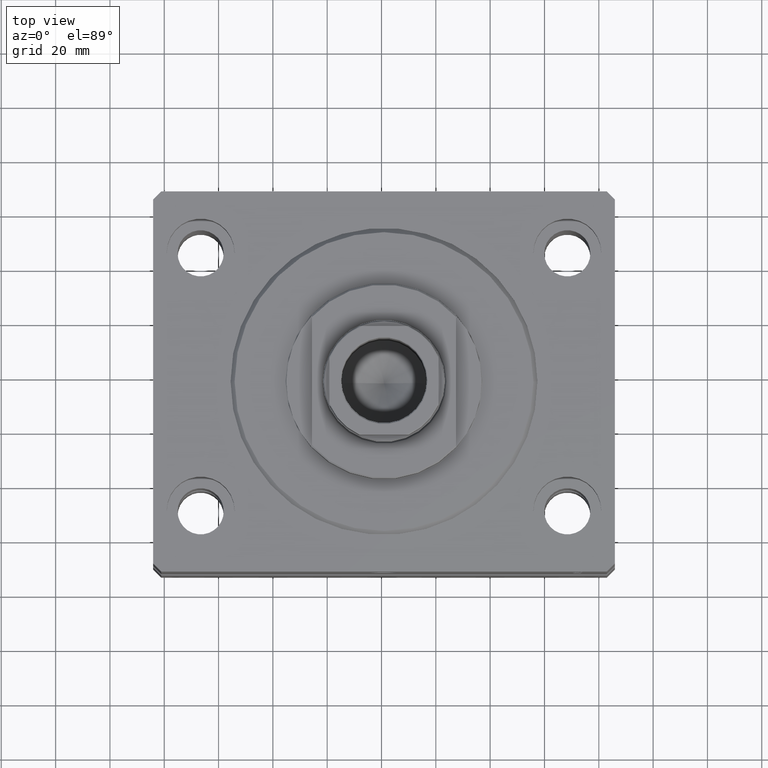
[diagram: clean part render]
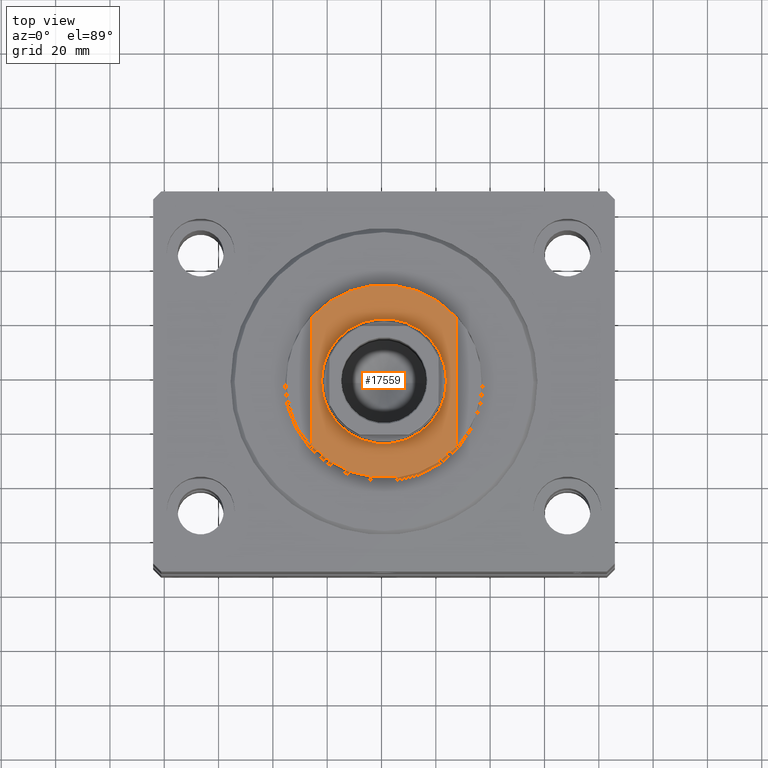
[diagram: same view with one face highlighted and labeled with its STEP entity id]
A machine part, top view. The second image highlights one B-rep face of the part: STEP entity #17559.
In plain terms, the highlighted planar face has unit normal (0, 0, 1).
Its self-contained STEP definition (entity closure, byte-faithful):
#2094 = ORIENTED_EDGE ( 'NONE', *, *, #7196, .T. ) ;
#2496 = AXIS2_PLACEMENT_3D ( 'NONE', #7784, #32256, #35726 ) ;
#2936 = CARTESIAN_POINT ( 'NONE',  ( 0.000000000000000000, 0.000000000000000000, -8.000000000000000000 ) ) ;
#4871 = CARTESIAN_POINT ( 'NONE',  ( 26.50000000000000000, 23.62202362203536765, -8.000000000000000000 ) ) ;
#5412 = DIRECTION ( 'NONE',  ( -1.000000000000000000, 0.000000000000000000, 0.000000000000000000 ) ) ;
#7196 = EDGE_CURVE ( 'NONE', #22814, #39453, #31225, .T. ) ;
#7396 = DIRECTION ( 'NONE',  ( -0.000000000000000000, -0.000000000000000000, 1.000000000000000000 ) ) ;
#7468 = CARTESIAN_POINT ( 'NONE',  ( -26.50000000000000711, -23.62202362203537476, -8.000000000000000000 ) ) ;
#7784 = CARTESIAN_POINT ( 'NONE',  ( 0.000000000000000000, 0.000000000000000000, -8.000000000000000000 ) ) ;
#8877 = CARTESIAN_POINT ( 'NONE',  ( 0.000000000000000000, 0.000000000000000000, -8.000000000000000000 ) ) ;
#9298 = CARTESIAN_POINT ( 'NONE',  ( 26.50000000000000000, -36.36963018783666257, -8.000000000000000000 ) ) ;
#10701 = AXIS2_PLACEMENT_3D ( 'NONE', #25074, #25309, #10776 ) ;
#10703 = DIRECTION ( 'NONE',  ( -0.000000000000000000, -1.000000000000000000, -0.000000000000000000 ) ) ;
#10770 = EDGE_CURVE ( 'NONE', #20800, #39605, #12686, .T. ) ;
#10776 = DIRECTION ( 'NONE',  ( -1.000000000000000000, 0.000000000000000000, -0.000000000000000000 ) ) ;
#12686 = CIRCLE ( 'NONE', #27422, 23.00000000000001776 ) ;
#13542 = DIRECTION ( 'NONE',  ( -0.000000000000000000, -0.000000000000000000, 1.000000000000000000 ) ) ;
#13780 = DIRECTION ( 'NONE',  ( -1.000000000000000000, 0.000000000000000000, 0.000000000000000000 ) ) ;
#14229 = FACE_OUTER_BOUND ( 'NONE', #22247, .T. ) ;
#14972 = CARTESIAN_POINT ( 'NONE',  ( -26.50000000000000000, 23.62202362203536765, -8.000000000000000000 ) ) ;
#17373 = LINE ( 'NONE', #42360, #26253 ) ;
#17559 = ADVANCED_FACE ( 'NONE', ( #25536, #14229 ), #39671, .T. ) ;
#20800 = VERTEX_POINT ( 'NONE', #41691 ) ;
#21686 = DIRECTION ( 'NONE',  ( -1.000000000000000000, 0.000000000000000000, 0.000000000000000000 ) ) ;
#21725 = ORIENTED_EDGE ( 'NONE', *, *, #43049, .F. ) ;
#22247 = EDGE_LOOP ( 'NONE', ( #41145, #2094, #22447, #21725 ) ) ;
#22447 = ORIENTED_EDGE ( 'NONE', *, *, #28877, .T. ) ;
#22814 = VERTEX_POINT ( 'NONE', #4871 ) ;
#24954 = EDGE_CURVE ( 'NONE', #39605, #20800, #35894, .T. ) ;
#25074 = CARTESIAN_POINT ( 'NONE',  ( 0.000000000000000000, 0.000000000000000000, -8.000000000000000000 ) ) ;
#25260 = VECTOR ( 'NONE', #45582, 1000.000000000000000 ) ;
#25309 = DIRECTION ( 'NONE',  ( 0.000000000000000000, 0.000000000000000000, -1.000000000000000000 ) ) ;
#25536 = FACE_BOUND ( 'NONE', #29865, .T. ) ;
#26253 = VECTOR ( 'NONE', #10703, 1000.000000000000000 ) ;
#27422 = AXIS2_PLACEMENT_3D ( 'NONE', #39061, #7396, #21686 ) ;
#28244 = CARTESIAN_POINT ( 'NONE',  ( 26.50000000000000000, -23.62202362203536765, -8.000000000000000000 ) ) ;
#28310 = CIRCLE ( 'NONE', #2496, 35.49999999999996447 ) ;
#28877 = EDGE_CURVE ( 'NONE', #39453, #42283, #35235, .T. ) ;
#29747 = VERTEX_POINT ( 'NONE', #14972 ) ;
#29865 = EDGE_LOOP ( 'NONE', ( #33899, #43868 ) ) ;
#31225 = LINE ( 'NONE', #9298, #25260 ) ;
#32256 = DIRECTION ( 'NONE',  ( 0.000000000000000000, 0.000000000000000000, -1.000000000000000000 ) ) ;
#33899 = ORIENTED_EDGE ( 'NONE', *, *, #10770, .T. ) ;
#34377 = AXIS2_PLACEMENT_3D ( 'NONE', #2936, #13542, #13780 ) ;
#34483 = AXIS2_PLACEMENT_3D ( 'NONE', #8877, #37054, #5412 ) ;
#35235 = CIRCLE ( 'NONE', #34483, 35.49999999999996447 ) ;
#35726 = DIRECTION ( 'NONE',  ( -1.000000000000000000, 0.000000000000000000, 0.000000000000000000 ) ) ;
#35894 = CIRCLE ( 'NONE', #34377, 23.00000000000001776 ) ;
#36796 = EDGE_CURVE ( 'NONE', #29747, #22814, #28310, .T. ) ;
#37054 = DIRECTION ( 'NONE',  ( 0.000000000000000000, 0.000000000000000000, -1.000000000000000000 ) ) ;
#39061 = CARTESIAN_POINT ( 'NONE',  ( 0.000000000000000000, 0.000000000000000000, -8.000000000000000000 ) ) ;
#39453 = VERTEX_POINT ( 'NONE', #28244 ) ;
#39605 = VERTEX_POINT ( 'NONE', #43063 ) ;
#39671 = PLANE ( 'NONE',  #10701 ) ;
#41145 = ORIENTED_EDGE ( 'NONE', *, *, #36796, .T. ) ;
#41691 = CARTESIAN_POINT ( 'NONE',  ( -23.00000000000001776, 0.000000000000000000, -8.000000000000000000 ) ) ;
#42283 = VERTEX_POINT ( 'NONE', #7468 ) ;
#42360 = CARTESIAN_POINT ( 'NONE',  ( -26.50000000000000000, -36.36963018783666257, -8.000000000000000000 ) ) ;
#43049 = EDGE_CURVE ( 'NONE', #29747, #42283, #17373, .T. ) ;
#43063 = CARTESIAN_POINT ( 'NONE',  ( 23.00000000000001776, 2.816687638038914718E-15, -8.000000000000000000 ) ) ;
#43868 = ORIENTED_EDGE ( 'NONE', *, *, #24954, .T. ) ;
#45582 = DIRECTION ( 'NONE',  ( 0.000000000000000000, -1.000000000000000000, -0.000000000000000000 ) ) ;